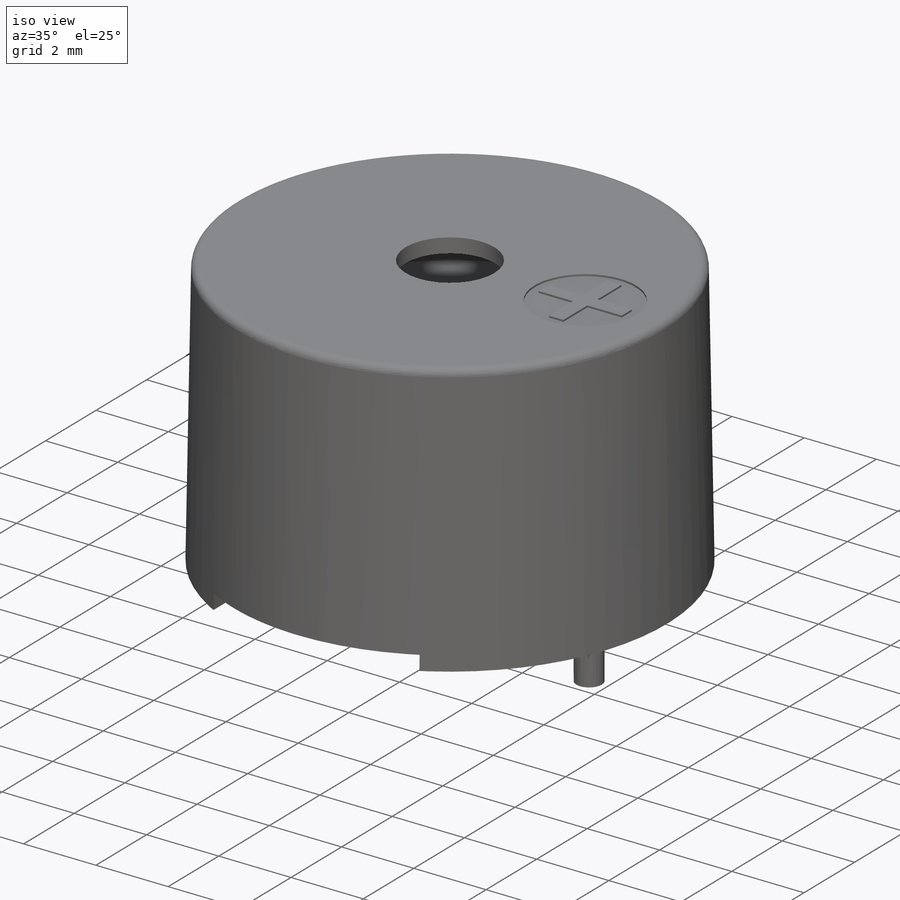
[diagram: iso view]
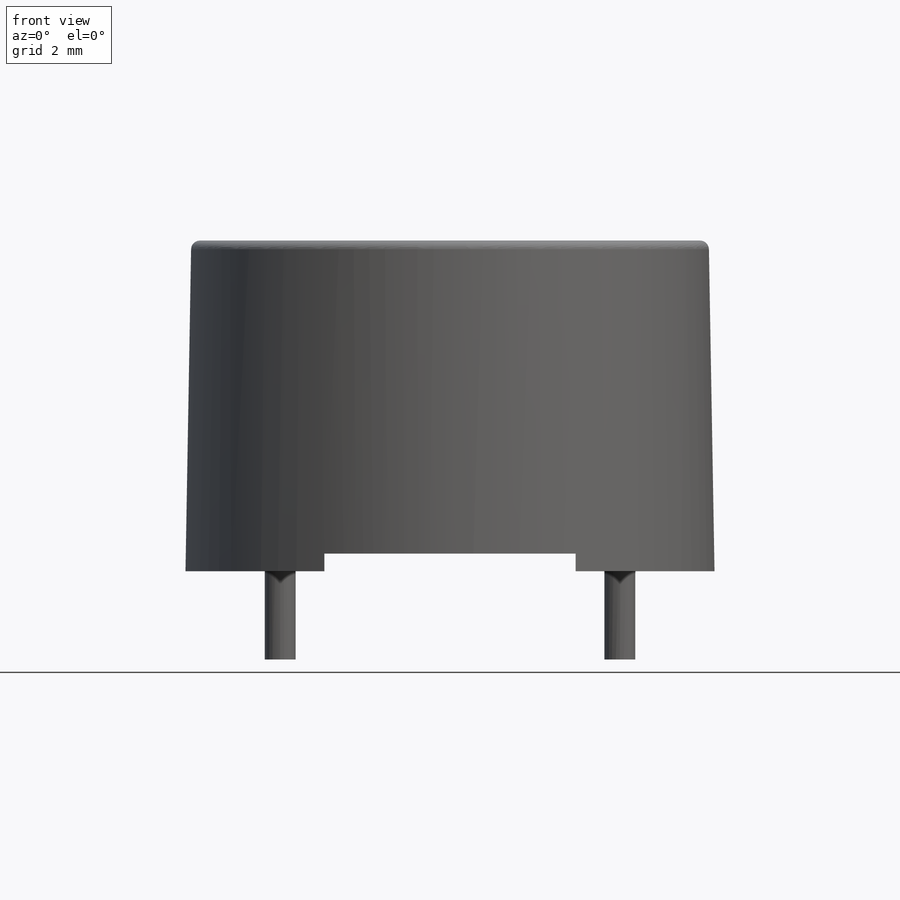
[diagram: front view]
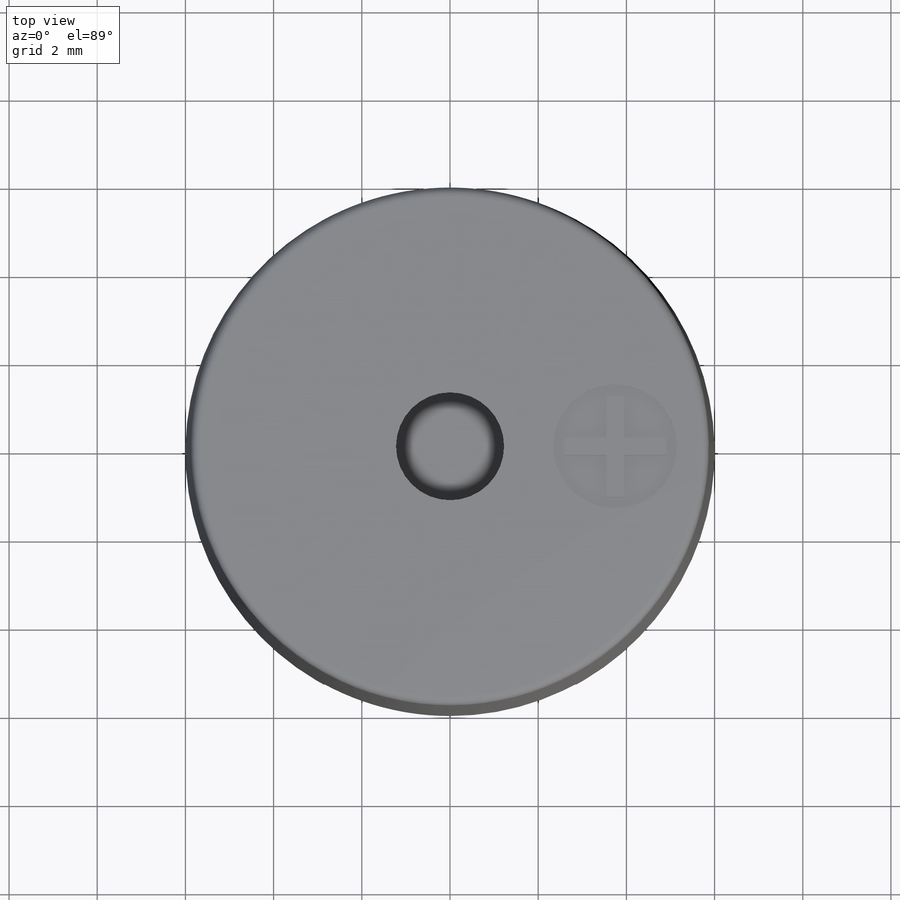
[diagram: top view]
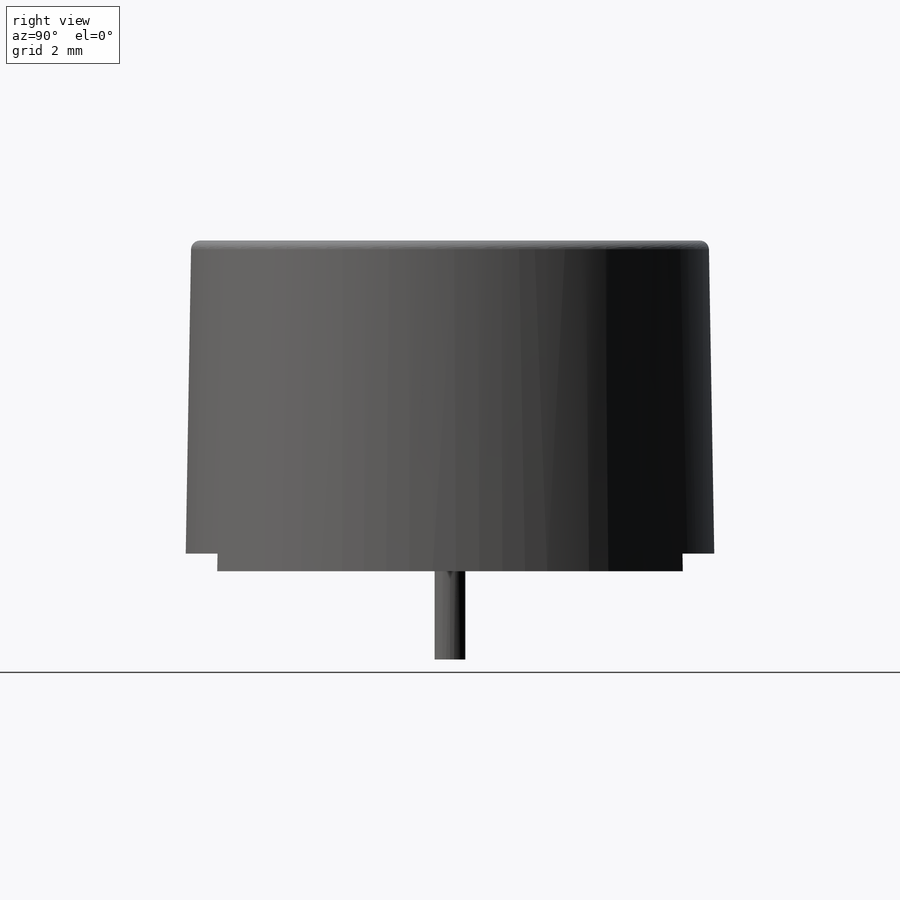
[diagram: right view]
SOLIDWORKS PART (.sldprt)
format: sldprt  version: not decoded by parser v0  size: 324,096 bytes
history: native  units: mm
features: sketch x7, cut_extrude x4, extrude x2, material x1, fillet x1, dome x1, plane x1 (+12 scaffold rows collapsed)
feature tree (29):
  scaffold x12  (default folders/planes/origin — collapsed)
  material  "Material <not specified>"
  sketch  "Sketch1"  dims[D1=~8.890985mm]
  extrude  "Extrude1"  Depth=7.5mm
  sketch  "Sketch2"  dims[c1.D3=~10.703345mm c1.D1=5.7mm c1.D2=2.85mm c2.D3=0.4mm]
  cut_extrude  "Cut-Extrude1"  Depth=0.4mm
  fillet  "Fillet1"  Radius=0.2mm
  dome  "Dome1"
  sketch  "Sketch3"  dims[D1=2.45mm]
  cut_extrude  "Cut-Extrude2"  Depth=2mm
  sketch  "Sketch4"
  cut_extrude  "Cut-Extrude3"  Depth=1.6mm
  sketch  "Sketch5"  dims[D1=2.8mm D2=0.4mm D3=0.4mm D4=2.3mm D5=2.3mm D6=1.15mm D7=1.15mm]
  cut_extrude  "Cut-Extrude4"  Depth=0.05mm
  sketch  "Sketch6"  dims[D1=0.7mm D2=7.7mm D3=3.85mm]
  extrude  "Extrude2"  Depth=2mm
  plane  "Board Plane"  Offset=0.25mm
  sketch  "Component_Outline"  dims[D1=12.0mm]
decode coverage: 13 of 15 modeling features carry decoded parameters
note: ~ marks probable driven/reference dimensions
note: suppression state not decoded; provenance and decode notes live in map.json
